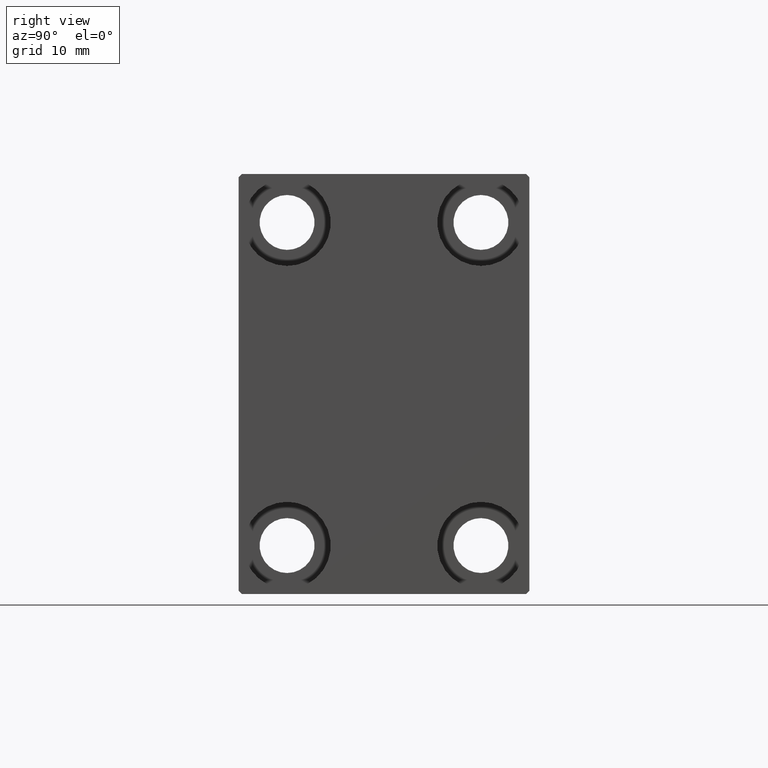
[diagram: clean part render]
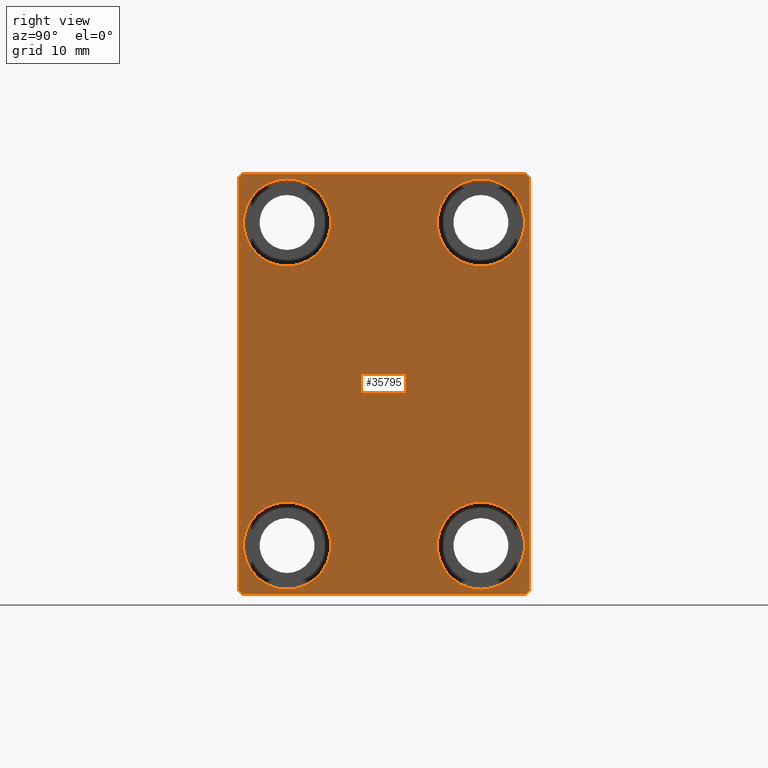
[diagram: same view with one face highlighted and labeled with its STEP entity id]
A machine part, right view. The second image highlights one B-rep face of the part: STEP entity #35795.
In plain terms, the highlighted planar face has unit normal (1, 0, 0).
Its self-contained STEP definition (entity closure, byte-faithful):
#35 = EDGE_CURVE ( 'NONE', #14231, #39627, #33068, .T. ) ;
#37 = VERTEX_POINT ( 'NONE', #9241 ) ;
#189 = VECTOR ( 'NONE', #33729, 1000.000000000000000 ) ;
#290 = CIRCLE ( 'NONE', #40060, 6.749999999999999112 ) ;
#325 = VERTEX_POINT ( 'NONE', #13195 ) ;
#1187 = CARTESIAN_POINT ( 'NONE',  ( 70.00000000000000000, -21.99999999999999289, 32.49999999999999289 ) ) ;
#1909 = FACE_BOUND ( 'NONE', #7017, .T. ) ;
#1941 = CARTESIAN_POINT ( 'NONE',  ( 70.00000000000000000, -14.99999999999999645, 18.25000000000000355 ) ) ;
#2162 = AXIS2_PLACEMENT_3D ( 'NONE', #34369, #4522, #3877 ) ;
#3047 = CARTESIAN_POINT ( 'NONE',  ( 70.00000000000000000, 27.25000000000032685, -27.24999999999957012 ) ) ;
#3205 = CIRCLE ( 'NONE', #3905, 6.749999999999999112 ) ;
#3426 = VECTOR ( 'NONE', #36303, 1000.000000000000000 ) ;
#3877 = DIRECTION ( 'NONE',  ( 0.000000000000000000, 0.000000000000000000, 1.000000000000000000 ) ) ;
#3905 = AXIS2_PLACEMENT_3D ( 'NONE', #13174, #26736, #23171 ) ;
#4303 = DIRECTION ( 'NONE',  ( 0.000000000000000000, -1.000000000000000000, -1.541976423090495387E-16 ) ) ;
#4522 = DIRECTION ( 'NONE',  ( -1.000000000000000000, -0.000000000000000000, -0.000000000000000000 ) ) ;
#4543 = ORIENTED_EDGE ( 'NONE', *, *, #35, .T. ) ;
#4661 = ORIENTED_EDGE ( 'NONE', *, *, #43327, .T. ) ;
#5466 = CARTESIAN_POINT ( 'NONE',  ( 70.00000000000000000, 0.000000000000000000, 0.000000000000000000 ) ) ;
#6158 = CARTESIAN_POINT ( 'NONE',  ( 70.00000000000000000, 14.99999999999999645, -25.00000000000000000 ) ) ;
#6317 = VERTEX_POINT ( 'NONE', #35316 ) ;
#6390 = DIRECTION ( 'NONE',  ( -1.000000000000000000, -0.000000000000000000, -0.000000000000000000 ) ) ;
#6506 = VERTEX_POINT ( 'NONE', #1941 ) ;
#6587 = VERTEX_POINT ( 'NONE', #1187 ) ;
#6646 = EDGE_CURVE ( 'NONE', #7722, #6587, #28537, .T. ) ;
#7017 = EDGE_LOOP ( 'NONE', ( #43709, #4661 ) ) ;
#7722 = VERTEX_POINT ( 'NONE', #13992 ) ;
#7787 = AXIS2_PLACEMENT_3D ( 'NONE', #31237, #28102, #38337 ) ;
#8068 = EDGE_CURVE ( 'NONE', #6317, #39796, #290, .T. ) ;
#8981 = EDGE_LOOP ( 'NONE', ( #22857, #15878 ) ) ;
#9136 = CARTESIAN_POINT ( 'NONE',  ( 70.00000000000000000, 22.00000000000001421, -32.50000000000000711 ) ) ;
#9241 = CARTESIAN_POINT ( 'NONE',  ( 70.00000000000000000, -22.50000000000000711, 31.99999999999999289 ) ) ;
#9806 = LINE ( 'NONE', #16936, #3426 ) ;
#9817 = ORIENTED_EDGE ( 'NONE', *, *, #10929, .T. ) ;
#10294 = EDGE_CURVE ( 'NONE', #30335, #14231, #34198, .T. ) ;
#10520 = EDGE_CURVE ( 'NONE', #40605, #44016, #3205, .T. ) ;
#10929 = EDGE_CURVE ( 'NONE', #22689, #30335, #26902, .T. ) ;
#11102 = VERTEX_POINT ( 'NONE', #41557 ) ;
#11809 = CARTESIAN_POINT ( 'NONE',  ( 70.00000000000000000, 14.99999999999999645, -18.25000000000000355 ) ) ;
#12135 = PLANE ( 'NONE',  #25705 ) ;
#12278 = AXIS2_PLACEMENT_3D ( 'NONE', #6158, #43299, #26827 ) ;
#12392 = CARTESIAN_POINT ( 'NONE',  ( 70.00000000000000000, -27.25000000000032330, -27.24999999999957012 ) ) ;
#12877 = VECTOR ( 'NONE', #41167, 999.9999999999998863 ) ;
#13158 = LINE ( 'NONE', #26721, #12877 ) ;
#13174 = CARTESIAN_POINT ( 'NONE',  ( 70.00000000000000000, -15.00000000000000355, -25.00000000000000000 ) ) ;
#13195 = CARTESIAN_POINT ( 'NONE',  ( 70.00000000000000000, 14.99999999999999645, -31.75000000000000000 ) ) ;
#13777 = CARTESIAN_POINT ( 'NONE',  ( 70.00000000000000000, -22.50000000000000711, -32.50000000000000711 ) ) ;
#13874 = EDGE_CURVE ( 'NONE', #11102, #6506, #33093, .T. ) ;
#13992 = CARTESIAN_POINT ( 'NONE',  ( 70.00000000000000000, 21.99999999999999289, 32.50000000000000000 ) ) ;
#14121 = CARTESIAN_POINT ( 'NONE',  ( 70.00000000000000000, -22.50000000000000711, -32.00000000000000711 ) ) ;
#14231 = VERTEX_POINT ( 'NONE', #41631 ) ;
#14844 = VERTEX_POINT ( 'NONE', #11809 ) ;
#15473 = FACE_BOUND ( 'NONE', #8981, .T. ) ;
#15878 = ORIENTED_EDGE ( 'NONE', *, *, #10520, .T. ) ;
#15931 = CARTESIAN_POINT ( 'NONE',  ( 70.00000000000000000, 22.50000000000000000, -32.50000000000000711 ) ) ;
#15975 = CARTESIAN_POINT ( 'NONE',  ( 70.00000000000000000, -15.00000000000000355, -18.25000000000000355 ) ) ;
#16936 = CARTESIAN_POINT ( 'NONE',  ( 70.00000000000000000, -22.50000000000000711, 32.49999999999999289 ) ) ;
#17076 = CIRCLE ( 'NONE', #2162, 6.749999999999999112 ) ;
#17201 = DIRECTION ( 'NONE',  ( 0.000000000000000000, -0.7071067811865474617, -0.7071067811865474617 ) ) ;
#17575 = CARTESIAN_POINT ( 'NONE',  ( 70.00000000000000000, -15.00000000000000355, -31.75000000000000000 ) ) ;
#19579 = AXIS2_PLACEMENT_3D ( 'NONE', #28777, #25433, #27888 ) ;
#20097 = EDGE_CURVE ( 'NONE', #37, #31161, #9806, .T. ) ;
#20295 = DIRECTION ( 'NONE',  ( -1.000000000000000000, -0.000000000000000000, -0.000000000000000000 ) ) ;
#20400 = DIRECTION ( 'NONE',  ( 0.000000000000000000, 0.000000000000000000, 1.000000000000000000 ) ) ;
#21919 = EDGE_LOOP ( 'NONE', ( #33996, #25543 ) ) ;
#22004 = VECTOR ( 'NONE', #17201, 1000.000000000000114 ) ;
#22142 = FACE_BOUND ( 'NONE', #23483, .T. ) ;
#22578 = DIRECTION ( 'NONE',  ( 1.000000000000000000, 0.000000000000000000, 0.000000000000000000 ) ) ;
#22689 = VERTEX_POINT ( 'NONE', #36571 ) ;
#22857 = ORIENTED_EDGE ( 'NONE', *, *, #28989, .T. ) ;
#22937 = CIRCLE ( 'NONE', #12278, 6.749999999999999112 ) ;
#23015 = CARTESIAN_POINT ( 'NONE',  ( 70.00000000000000000, 15.00000000000000355, 31.75000000000000000 ) ) ;
#23030 = AXIS2_PLACEMENT_3D ( 'NONE', #38170, #41283, #41075 ) ;
#23171 = DIRECTION ( 'NONE',  ( 0.000000000000000000, 0.000000000000000000, 1.000000000000000000 ) ) ;
#23483 = EDGE_LOOP ( 'NONE', ( #35046, #33457 ) ) ;
#24149 = CIRCLE ( 'NONE', #7787, 6.749999999999999112 ) ;
#24162 = CARTESIAN_POINT ( 'NONE',  ( 70.00000000000000000, 14.99999999999999645, -25.00000000000000000 ) ) ;
#24520 = LINE ( 'NONE', #30992, #22004 ) ;
#25029 = EDGE_CURVE ( 'NONE', #6587, #37, #24520, .T. ) ;
#25092 = VECTOR ( 'NONE', #4303, 1000.000000000000000 ) ;
#25433 = DIRECTION ( 'NONE',  ( -1.000000000000000000, -0.000000000000000000, -0.000000000000000000 ) ) ;
#25479 = FACE_BOUND ( 'NONE', #21919, .T. ) ;
#25543 = ORIENTED_EDGE ( 'NONE', *, *, #38425, .T. ) ;
#25705 = AXIS2_PLACEMENT_3D ( 'NONE', #5466, #22578, #33931 ) ;
#26721 = CARTESIAN_POINT ( 'NONE',  ( 70.00000000000000000, 27.25000000000014921, 27.24999999999976907 ) ) ;
#26736 = DIRECTION ( 'NONE',  ( -1.000000000000000000, -0.000000000000000000, -0.000000000000000000 ) ) ;
#26827 = DIRECTION ( 'NONE',  ( 0.000000000000000000, 0.000000000000000000, 1.000000000000000000 ) ) ;
#26902 = LINE ( 'NONE', #13777, #32324 ) ;
#27344 = CARTESIAN_POINT ( 'NONE',  ( 70.00000000000000000, 22.49999999999999289, 31.99999999999999289 ) ) ;
#27346 = DIRECTION ( 'NONE',  ( 0.000000000000000000, 1.000000000000000000, 0.000000000000000000 ) ) ;
#27703 = EDGE_LOOP ( 'NONE', ( #34818, #31024, #32260, #29910, #9817, #41645, #4543, #34394 ) ) ;
#27888 = DIRECTION ( 'NONE',  ( 0.000000000000000000, 0.000000000000000000, 1.000000000000000000 ) ) ;
#28102 = DIRECTION ( 'NONE',  ( -1.000000000000000000, -0.000000000000000000, -0.000000000000000000 ) ) ;
#28537 = LINE ( 'NONE', #34791, #25092 ) ;
#28733 = EDGE_CURVE ( 'NONE', #325, #14844, #40544, .T. ) ;
#28777 = CARTESIAN_POINT ( 'NONE',  ( 70.00000000000000000, -14.99999999999999645, 25.00000000000000000 ) ) ;
#28989 = EDGE_CURVE ( 'NONE', #44016, #40605, #24149, .T. ) ;
#29036 = FACE_OUTER_BOUND ( 'NONE', #27703, .T. ) ;
#29079 = AXIS2_PLACEMENT_3D ( 'NONE', #24162, #6390, #20400 ) ;
#29910 = ORIENTED_EDGE ( 'NONE', *, *, #38266, .T. ) ;
#30335 = VERTEX_POINT ( 'NONE', #9136 ) ;
#30851 = DIRECTION ( 'NONE',  ( -0.000000000000000000, 0.7071067811865376918, 0.7071067811865573427 ) ) ;
#30943 = EDGE_CURVE ( 'NONE', #6506, #11102, #17076, .T. ) ;
#30969 = CARTESIAN_POINT ( 'NONE',  ( 70.00000000000000000, 15.00000000000000355, 25.00000000000000000 ) ) ;
#30992 = CARTESIAN_POINT ( 'NONE',  ( 70.00000000000000000, -27.25000000000000000, 27.25000000000000000 ) ) ;
#31024 = ORIENTED_EDGE ( 'NONE', *, *, #25029, .T. ) ;
#31161 = VERTEX_POINT ( 'NONE', #14121 ) ;
#31237 = CARTESIAN_POINT ( 'NONE',  ( 70.00000000000000000, -15.00000000000000355, -25.00000000000000000 ) ) ;
#32260 = ORIENTED_EDGE ( 'NONE', *, *, #20097, .T. ) ;
#32324 = VECTOR ( 'NONE', #27346, 1000.000000000000000 ) ;
#33068 = LINE ( 'NONE', #15931, #189 ) ;
#33081 = EDGE_CURVE ( 'NONE', #39627, #7722, #13158, .T. ) ;
#33093 = CIRCLE ( 'NONE', #19579, 6.749999999999999112 ) ;
#33457 = ORIENTED_EDGE ( 'NONE', *, *, #13874, .T. ) ;
#33729 = DIRECTION ( 'NONE',  ( 0.000000000000000000, -1.067522139062650425E-16, 1.000000000000000000 ) ) ;
#33931 = DIRECTION ( 'NONE',  ( 0.000000000000000000, 0.000000000000000000, -1.000000000000000000 ) ) ;
#33996 = ORIENTED_EDGE ( 'NONE', *, *, #28733, .T. ) ;
#34198 = LINE ( 'NONE', #3047, #39396 ) ;
#34340 = VECTOR ( 'NONE', #39519, 1000.000000000000000 ) ;
#34369 = CARTESIAN_POINT ( 'NONE',  ( 70.00000000000000000, -14.99999999999999645, 25.00000000000000000 ) ) ;
#34394 = ORIENTED_EDGE ( 'NONE', *, *, #33081, .T. ) ;
#34791 = CARTESIAN_POINT ( 'NONE',  ( 70.00000000000000000, 22.49999999999999289, 32.50000000000000000 ) ) ;
#34818 = ORIENTED_EDGE ( 'NONE', *, *, #6646, .T. ) ;
#35046 = ORIENTED_EDGE ( 'NONE', *, *, #30943, .T. ) ;
#35316 = CARTESIAN_POINT ( 'NONE',  ( 70.00000000000000000, 15.00000000000000355, 18.25000000000000355 ) ) ;
#35795 = ADVANCED_FACE ( 'NONE', ( #25479, #22142, #1909, #15473, #29036 ), #12135, .T. ) ;
#36303 = DIRECTION ( 'NONE',  ( 0.000000000000000000, 0.000000000000000000, -1.000000000000000000 ) ) ;
#36571 = CARTESIAN_POINT ( 'NONE',  ( 70.00000000000000000, -22.00000000000002132, -32.50000000000000711 ) ) ;
#36774 = DIRECTION ( 'NONE',  ( 0.000000000000000000, 0.000000000000000000, 1.000000000000000000 ) ) ;
#38170 = CARTESIAN_POINT ( 'NONE',  ( 70.00000000000000000, 15.00000000000000355, 25.00000000000000000 ) ) ;
#38266 = EDGE_CURVE ( 'NONE', #31161, #22689, #42869, .T. ) ;
#38337 = DIRECTION ( 'NONE',  ( 0.000000000000000000, 0.000000000000000000, 1.000000000000000000 ) ) ;
#38425 = EDGE_CURVE ( 'NONE', #14844, #325, #22937, .T. ) ;
#39396 = VECTOR ( 'NONE', #30851, 1000.000000000000114 ) ;
#39519 = DIRECTION ( 'NONE',  ( -0.000000000000000000, 0.7071067811865378028, -0.7071067811865573427 ) ) ;
#39627 = VERTEX_POINT ( 'NONE', #27344 ) ;
#39796 = VERTEX_POINT ( 'NONE', #23015 ) ;
#40060 = AXIS2_PLACEMENT_3D ( 'NONE', #30969, #20295, #36774 ) ;
#40544 = CIRCLE ( 'NONE', #29079, 6.749999999999999112 ) ;
#40605 = VERTEX_POINT ( 'NONE', #15975 ) ;
#41075 = DIRECTION ( 'NONE',  ( 0.000000000000000000, 0.000000000000000000, 1.000000000000000000 ) ) ;
#41167 = DIRECTION ( 'NONE',  ( -0.000000000000000000, -0.7071067811865425767, 0.7071067811865525687 ) ) ;
#41283 = DIRECTION ( 'NONE',  ( -1.000000000000000000, -0.000000000000000000, -0.000000000000000000 ) ) ;
#41557 = CARTESIAN_POINT ( 'NONE',  ( 70.00000000000000000, -14.99999999999999645, 31.75000000000000000 ) ) ;
#41631 = CARTESIAN_POINT ( 'NONE',  ( 70.00000000000000000, 22.50000000000000000, -32.00000000000002132 ) ) ;
#41645 = ORIENTED_EDGE ( 'NONE', *, *, #10294, .T. ) ;
#42220 = CIRCLE ( 'NONE', #23030, 6.749999999999999112 ) ;
#42869 = LINE ( 'NONE', #12392, #34340 ) ;
#43299 = DIRECTION ( 'NONE',  ( -1.000000000000000000, -0.000000000000000000, -0.000000000000000000 ) ) ;
#43327 = EDGE_CURVE ( 'NONE', #39796, #6317, #42220, .T. ) ;
#43709 = ORIENTED_EDGE ( 'NONE', *, *, #8068, .T. ) ;
#44016 = VERTEX_POINT ( 'NONE', #17575 ) ;